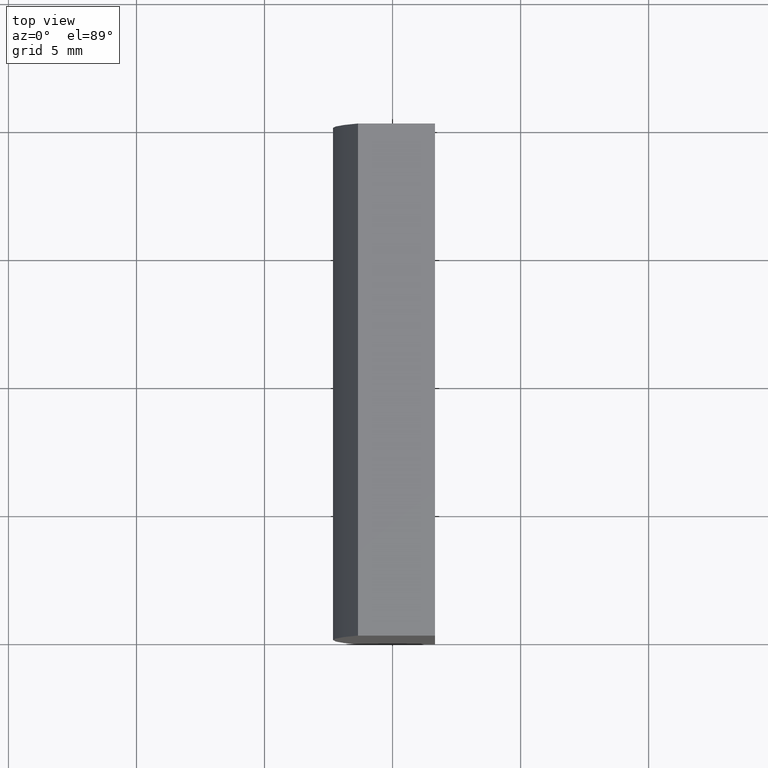
[diagram: clean part render]
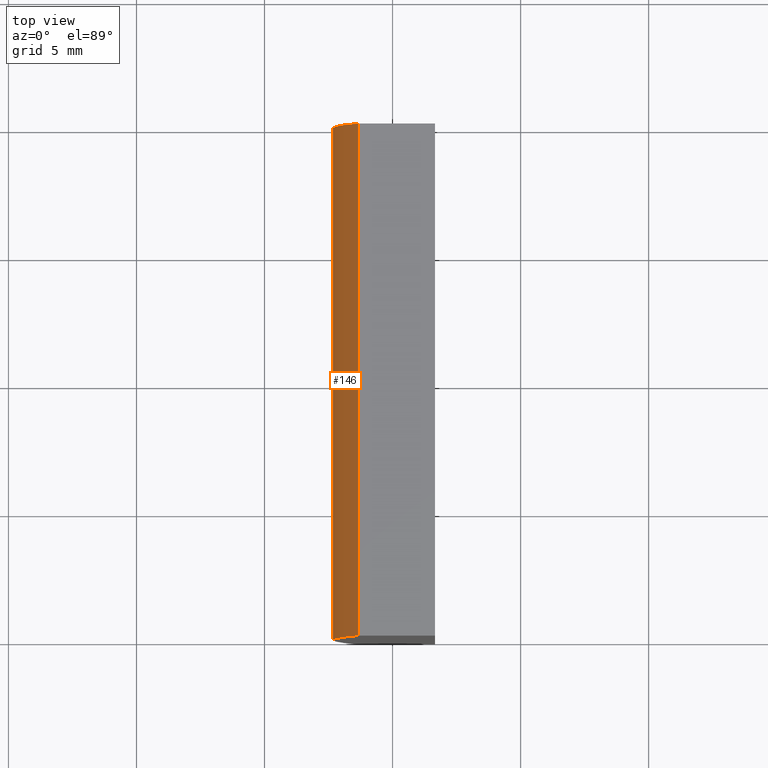
[diagram: same view with one face highlighted and labeled with its STEP entity id]
A machine part, top view. The second image highlights one B-rep face of the part: STEP entity #146.
In plain terms, the highlighted cylindrical surface (partial cylindrical patch) has radius 51.68 mm, axis along (-0, -1, -0).
Its self-contained STEP definition (entity closure, byte-faithful):
#8 = EDGE_CURVE ( 'NONE', #66, #141, #55, .T. ) ;
#14 = AXIS2_PLACEMENT_3D ( 'NONE', #119, #81, #87 ) ;
#20 = EDGE_CURVE ( 'NONE', #47, #66, #99, .T. ) ;
#21 = DIRECTION ( 'NONE',  ( 0.0000000000000000000, 1.000000000000000000, 0.0000000000000000000 ) ) ;
#26 = ORIENTED_EDGE ( 'NONE', *, *, #43, .F. ) ;
#28 = CARTESIAN_POINT ( 'NONE',  ( 4.355204334851265500, 20.00000000000000000, 4.286263797015675000E-017 ) ) ;
#31 = CIRCLE ( 'NONE', #199, 51.68000000000000700 ) ;
#32 = CARTESIAN_POINT ( 'NONE',  ( -46.34807366568831100, 20.00000000000000000, -10.00000000000000000 ) ) ;
#37 = CARTESIAN_POINT ( 'NONE',  ( -46.34807366568831100, 0.0000000000000000000, -10.00000000000000000 ) ) ;
#43 = EDGE_CURVE ( 'NONE', #47, #152, #31, .T. ) ;
#47 = VERTEX_POINT ( 'NONE', #186 ) ;
#49 = DIRECTION ( 'NONE',  ( 0.0000000000000000000, 0.0000000000000000000, 1.000000000000000000 ) ) ;
#52 = CARTESIAN_POINT ( 'NONE',  ( -46.34807366568830400, 20.00000000000000000, 10.00000000000000000 ) ) ;
#55 = CIRCLE ( 'NONE', #178, 51.68000000000000700 ) ;
#66 = VERTEX_POINT ( 'NONE', #37 ) ;
#69 = DIRECTION ( 'NONE',  ( -0.0000000000000000000, -1.000000000000000000, -0.0000000000000000000 ) ) ;
#80 = EDGE_LOOP ( 'NONE', ( #121, #131, #26, #129 ) ) ;
#81 = DIRECTION ( 'NONE',  ( -0.0000000000000000000, -1.000000000000000000, -0.0000000000000000000 ) ) ;
#85 = CYLINDRICAL_SURFACE ( 'NONE', #14, 51.68000000000000700 ) ;
#87 = DIRECTION ( 'NONE',  ( 0.0000000000000000000, 0.0000000000000000000, -1.000000000000000000 ) ) ;
#99 = LINE ( 'NONE', #32, #115 ) ;
#106 = DIRECTION ( 'NONE',  ( 0.0000000000000000000, 1.000000000000000000, 0.0000000000000000000 ) ) ;
#115 = VECTOR ( 'NONE', #69, 1000.000000000000000 ) ;
#119 = CARTESIAN_POINT ( 'NONE',  ( 4.355204334851265500, 20.00000000000000000, 4.286263797015675000E-017 ) ) ;
#121 = ORIENTED_EDGE ( 'NONE', *, *, #8, .T. ) ;
#124 = DIRECTION ( 'NONE',  ( -0.0000000000000000000, -1.000000000000000000, -0.0000000000000000000 ) ) ;
#129 = ORIENTED_EDGE ( 'NONE', *, *, #20, .T. ) ;
#130 = CARTESIAN_POINT ( 'NONE',  ( 4.355204334851265500, 0.0000000000000000000, 4.286263797015675000E-017 ) ) ;
#131 = ORIENTED_EDGE ( 'NONE', *, *, #184, .F. ) ;
#141 = VERTEX_POINT ( 'NONE', #187 ) ;
#146 = ADVANCED_FACE ( 'NONE', ( #200 ), #85, .T. ) ;
#152 = VERTEX_POINT ( 'NONE', #52 ) ;
#178 = AXIS2_PLACEMENT_3D ( 'NONE', #130, #21, #49 ) ;
#179 = DIRECTION ( 'NONE',  ( 0.0000000000000000000, 0.0000000000000000000, 1.000000000000000000 ) ) ;
#184 = EDGE_CURVE ( 'NONE', #152, #141, #191, .T. ) ;
#186 = CARTESIAN_POINT ( 'NONE',  ( -46.34807366568831100, 20.00000000000000000, -10.00000000000000000 ) ) ;
#187 = CARTESIAN_POINT ( 'NONE',  ( -46.34807366568830400, 0.0000000000000000000, 10.00000000000000000 ) ) ;
#188 = CARTESIAN_POINT ( 'NONE',  ( -46.34807366568830400, 20.00000000000000000, 10.00000000000000000 ) ) ;
#191 = LINE ( 'NONE', #188, #192 ) ;
#192 = VECTOR ( 'NONE', #124, 1000.000000000000000 ) ;
#199 = AXIS2_PLACEMENT_3D ( 'NONE', #28, #106, #179 ) ;
#200 = FACE_OUTER_BOUND ( 'NONE', #80, .T. ) ;